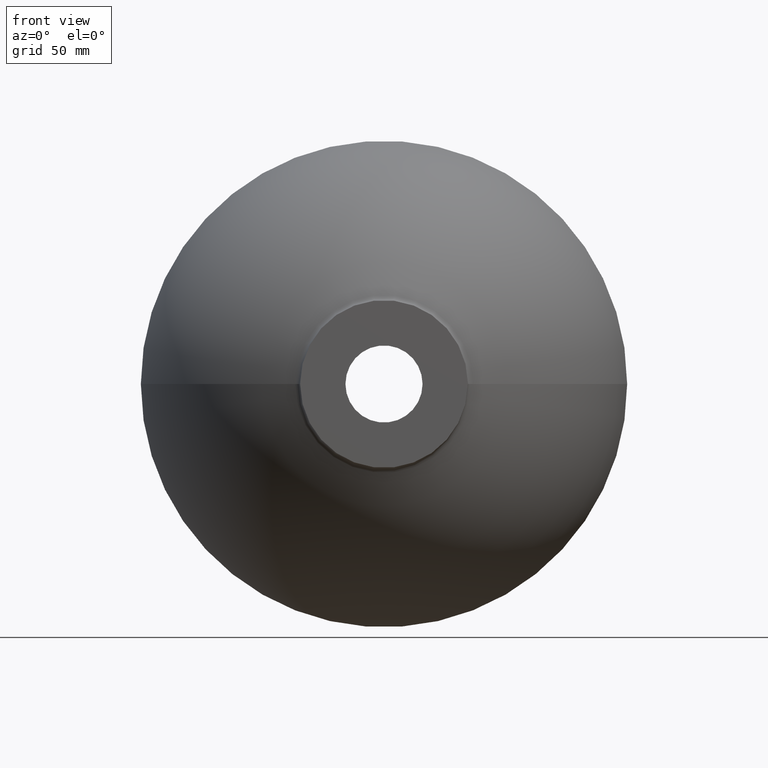
[diagram: clean part render]
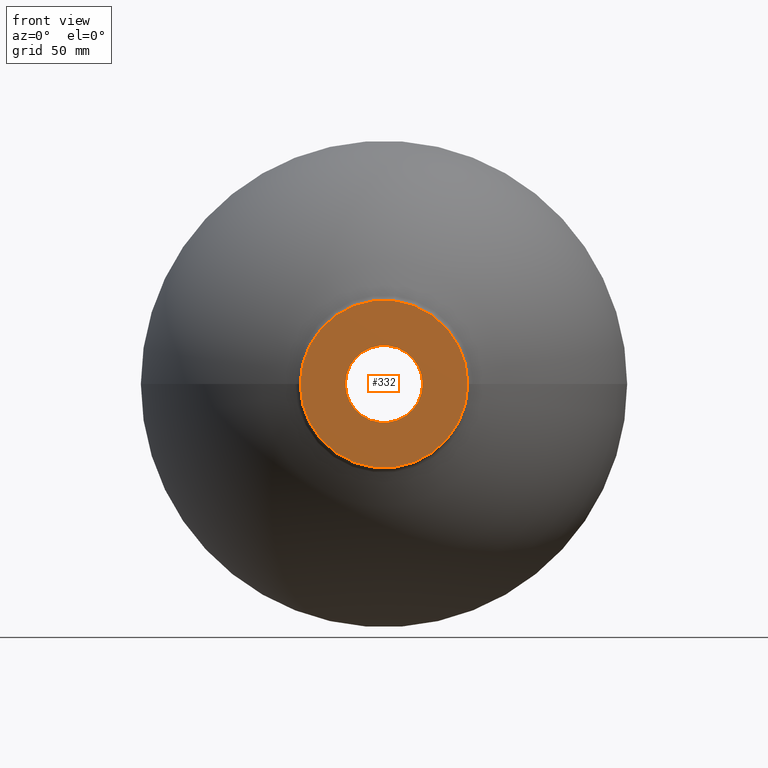
[diagram: same view with one face highlighted and labeled with its STEP entity id]
A machine part, front view. The second image highlights one B-rep face of the part: STEP entity #332.
In plain terms, the highlighted planar face has unit normal (0, -1, 0).
Its self-contained STEP definition (entity closure, byte-faithful):
#2 = FACE_OUTER_BOUND ( 'NONE', #385, .T. ) ;
#6 = PLANE ( 'NONE',  #151 ) ;
#23 = DIRECTION ( 'NONE',  ( -1.104785946437366900E-016, 1.000000000000000000, -0.0000000000000000000 ) ) ;
#29 = ORIENTED_EDGE ( 'NONE', *, *, #252, .F. ) ;
#48 = CIRCLE ( 'NONE', #101, 50.00000000000000000 ) ;
#54 = DIRECTION ( 'NONE',  ( -1.000000000000000000, -1.104785946437366900E-016, 0.0000000000000000000 ) ) ;
#64 = DIRECTION ( 'NONE',  ( -1.000000000000000000, -1.104785946437366800E-016, 0.0000000000000000000 ) ) ;
#86 = DIRECTION ( 'NONE',  ( -1.000000000000000000, -1.104785946437366900E-016, 0.0000000000000000000 ) ) ;
#87 = CARTESIAN_POINT ( 'NONE',  ( -49.99999999999998600, -5.523929732186834300E-015, 0.0000000000000000000 ) ) ;
#91 = CARTESIAN_POINT ( 'NONE',  ( 50.00000000000001400, 5.523929732186834300E-015, 6.123233995736766900E-015 ) ) ;
#94 = CIRCLE ( 'NONE', #204, 23.00000000000002800 ) ;
#101 = AXIS2_PLACEMENT_3D ( 'NONE', #369, #23, #54 ) ;
#111 = EDGE_CURVE ( 'NONE', #282, #212, #247, .T. ) ;
#126 = CARTESIAN_POINT ( 'NONE',  ( -23.00000000000001400, -2.541007676805946600E-015, 0.0000000000000000000 ) ) ;
#151 = AXIS2_PLACEMENT_3D ( 'NONE', #176, #207, #343 ) ;
#156 = ORIENTED_EDGE ( 'NONE', *, *, #399, .T. ) ;
#160 = VERTEX_POINT ( 'NONE', #320 ) ;
#165 = AXIS2_PLACEMENT_3D ( 'NONE', #401, #413, #86 ) ;
#170 = EDGE_CURVE ( 'NONE', #249, #160, #94, .T. ) ;
#176 = CARTESIAN_POINT ( 'NONE',  ( -23.00000000000001400, -1.153895334038977400E-015, 0.0000000000000000000 ) ) ;
#195 = CARTESIAN_POINT ( 'NONE',  ( 1.387778780781445700E-014, 0.0000000000000000000, 0.0000000000000000000 ) ) ;
#204 = AXIS2_PLACEMENT_3D ( 'NONE', #355, #360, #64 ) ;
#207 = DIRECTION ( 'NONE',  ( 1.104785946437366900E-016, -1.000000000000000000, 0.0000000000000000000 ) ) ;
#211 = DIRECTION ( 'NONE',  ( -1.104785946437366900E-016, 1.000000000000000000, -0.0000000000000000000 ) ) ;
#212 = VERTEX_POINT ( 'NONE', #87 ) ;
#247 = CIRCLE ( 'NONE', #165, 50.00000000000000000 ) ;
#249 = VERTEX_POINT ( 'NONE', #126 ) ;
#252 = EDGE_CURVE ( 'NONE', #212, #282, #48, .T. ) ;
#267 = DIRECTION ( 'NONE',  ( -1.000000000000000000, -1.104785946437366800E-016, 0.0000000000000000000 ) ) ;
#274 = FACE_BOUND ( 'NONE', #280, .T. ) ;
#280 = EDGE_LOOP ( 'NONE', ( #293, #156 ) ) ;
#282 = VERTEX_POINT ( 'NONE', #91 ) ;
#287 = CIRCLE ( 'NONE', #393, 23.00000000000002800 ) ;
#293 = ORIENTED_EDGE ( 'NONE', *, *, #170, .T. ) ;
#300 = ORIENTED_EDGE ( 'NONE', *, *, #111, .F. ) ;
#320 = CARTESIAN_POINT ( 'NONE',  ( 23.00000000000004300, 2.541007676805946200E-015, 2.816687638038916300E-015 ) ) ;
#332 = ADVANCED_FACE ( 'NONE', ( #274, #2 ), #6, .T. ) ;
#343 = DIRECTION ( 'NONE',  ( 1.000000000000000000, 1.104785946437366900E-016, 0.0000000000000000000 ) ) ;
#355 = CARTESIAN_POINT ( 'NONE',  ( 1.387778780781445700E-014, 0.0000000000000000000, 0.0000000000000000000 ) ) ;
#360 = DIRECTION ( 'NONE',  ( -1.104785946437366900E-016, 1.000000000000000000, -0.0000000000000000000 ) ) ;
#369 = CARTESIAN_POINT ( 'NONE',  ( 1.387778780781445700E-014, 0.0000000000000000000, 0.0000000000000000000 ) ) ;
#385 = EDGE_LOOP ( 'NONE', ( #29, #300 ) ) ;
#393 = AXIS2_PLACEMENT_3D ( 'NONE', #195, #211, #267 ) ;
#399 = EDGE_CURVE ( 'NONE', #160, #249, #287, .T. ) ;
#401 = CARTESIAN_POINT ( 'NONE',  ( 1.387778780781445700E-014, 0.0000000000000000000, 0.0000000000000000000 ) ) ;
#413 = DIRECTION ( 'NONE',  ( -1.104785946437366900E-016, 1.000000000000000000, -0.0000000000000000000 ) ) ;